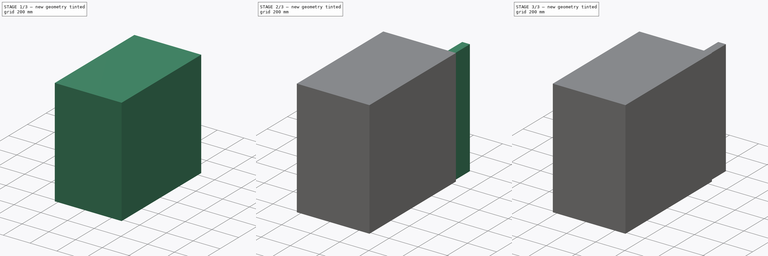
[diagram: build sequence overview — one tinted view per stage of 3, left to right]
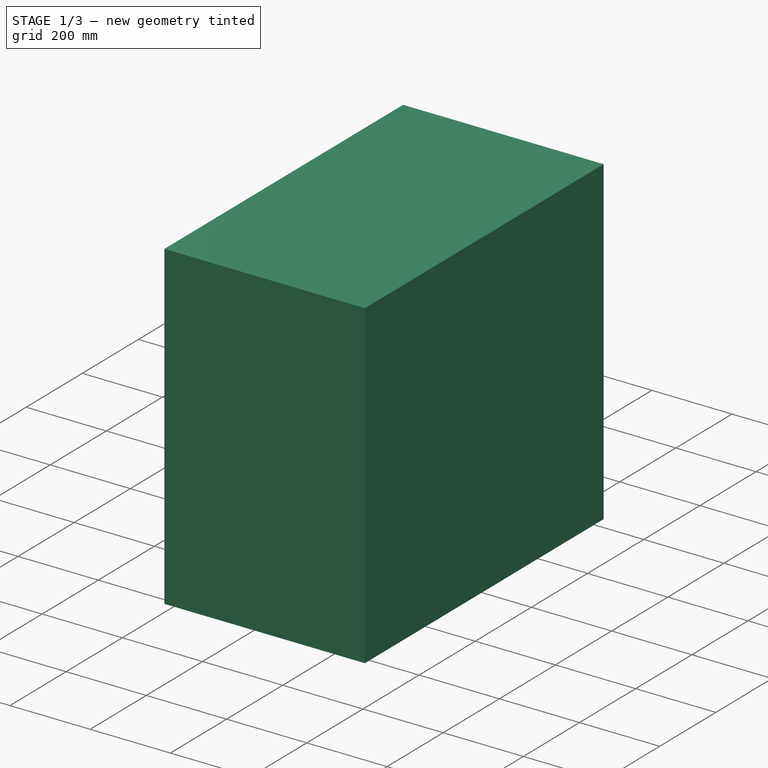
[diagram: stage 1 of 3 — iso view after this stage's code; geometry added in this stage tinted green]
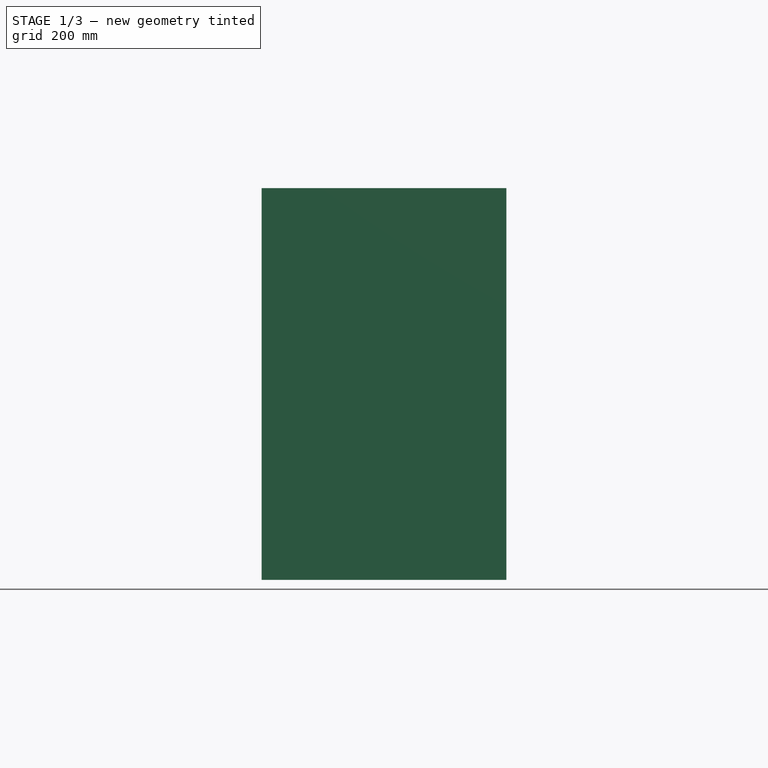
[diagram: stage 1 of 3 — front view after this stage's code; geometry added in this stage tinted green]
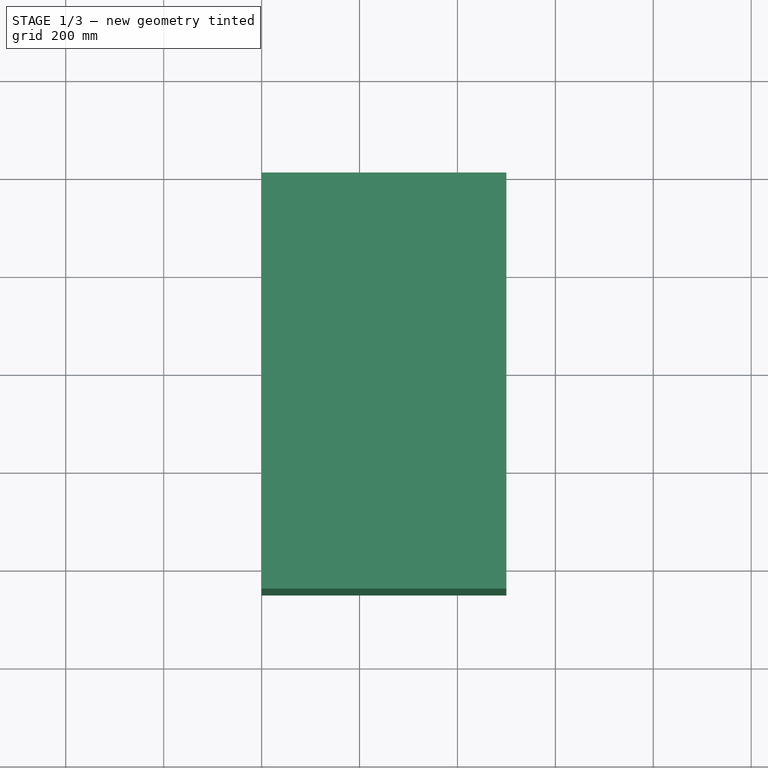
[diagram: stage 1 of 3 — top view after this stage's code; geometry added in this stage tinted green]
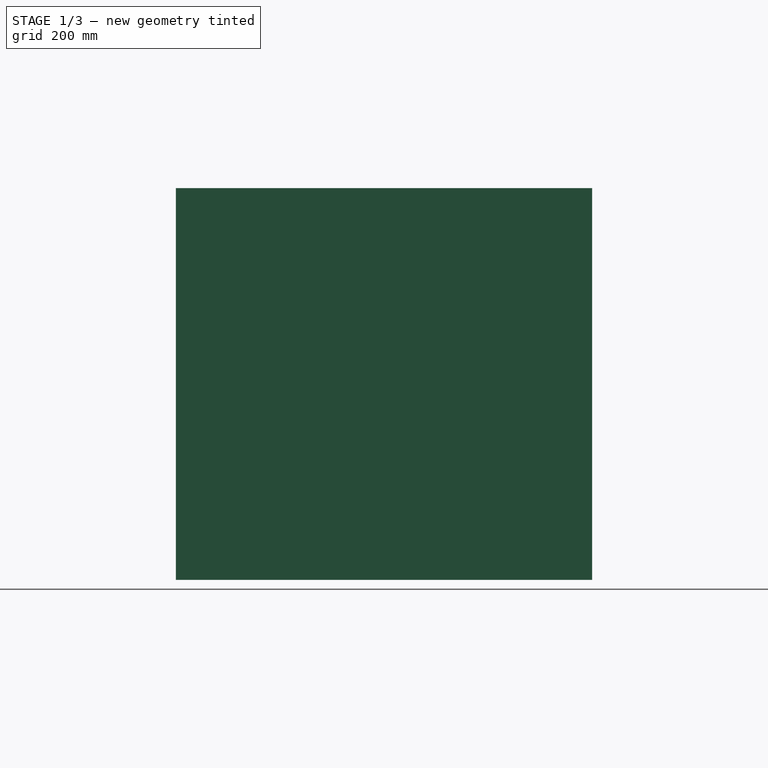
[diagram: stage 1 of 3 — right view after this stage's code; geometry added in this stage tinted green]
FCSTD DOCUMENT  (FreeCAD 1.0R39319 (Git))
Label: kitchen-stove-500x800x850
License: All rights reserved
LicenseURL: https://en.wikipedia.org/wiki/All_rights_reserved
objects: Sketcher::SketchObject×7, PartDesign::Pad×5, PartDesign::Pocket×2, PartDesign::Body×1
note: 36 computed .brp shape members not serialized (recipe doc carries the construction recipe); baked Part::Feature solids carry a one-line shape summary decoded from their .brp

FEATURE [Sketcher::SketchObject] Sketch
  ArcFitTolerance = 1e-06
  AttachmentSupport = -> [XZ_Plane]
  FullyConstrained = true
  MakeInternals = false
  MapMode = 5
  Placement = pos=(0,0,0) rot=(1,0,0;1.5708rad)
  sketch-geometry (4):
    g0: LineSegment StartX=0 StartY=0 StartZ=0 EndX=500 EndY=0 EndZ=0
    g1: LineSegment StartX=500 StartY=0 StartZ=0 EndX=500 EndY=800 EndZ=0
    g2: LineSegment StartX=500 StartY=800 StartZ=0 EndX=0 EndY=800 EndZ=0
    g3: LineSegment StartX=0 StartY=800 StartZ=0 EndX=0 EndY=0 EndZ=0
  constraints (11):
    c: Coincident(g0,g1)
    c: Coincident(g1,g2)
    c: Coincident(g2,g3)
    c: Coincident(g3,g0)
    c: Horizontal(g0)
    c: Horizontal(g2)
    c: Vertical(g1)
    c: Vertical(g3)
    c: Distance(g1,g3) = 500
    c: Distance(g0,g2) = 800
    c: Coincident(g0,g-1)
FEATURE [PartDesign::Pad] Pad
  Direction = (0,-1,2e-16)
  Length = 850
  Length2 = 10
  Placement = pos=(0,0,0) rot=(1,0,0;1.5708rad)
  Profile = -> Sketch
  ReferenceAxis = -> Sketch [N_Axis]
  Refine = true
  Suppressed = false
  Type = 0
FEATURE [Sketcher::SketchObject] Sketch001
  ArcFitTolerance = 1e-06
  AttachmentSupport = -> [Pad]
  FullyConstrained = false
  MakeInternals = false
  MapMode = 5
  Placement = pos=(0,0,0) rot=(0.707107,0,-0.707107;3.14159rad)
  sketch-geometry (8):
    g0: LineSegment StartX=-773.792 StartY=818.797 StartZ=0 EndX=-773.792 EndY=33.306 EndZ=0
    g1: LineSegment StartX=-773.792 StartY=33.306 StartZ=0 EndX=-401.052 EndY=33.306 EndZ=0
    g2: LineSegment StartX=-401.052 StartY=33.306 StartZ=0 EndX=-401.052 EndY=818.797 EndZ=0
    g3: LineSegment StartX=-401.052 StartY=818.797 StartZ=0 EndX=-773.792 EndY=818.797 EndZ=0
    g4: LineSegment StartX=-379.994 StartY=818.797 StartZ=0 EndX=-379.994 EndY=33.306 EndZ=0
    g5: LineSegment StartX=-379.994 StartY=33.306 StartZ=0 EndX=-30.4183 EndY=33.306 EndZ=0
    g6: LineSegment StartX=-30.4183 StartY=33.306 StartZ=0 EndX=-30.4183 EndY=818.797 EndZ=0
    g7: LineSegment StartX=-30.4183 StartY=818.797 StartZ=0 EndX=-379.994 EndY=818.797 EndZ=0
  constraints (16):
    c: Coincident(g0,g1)
    c: Coincident(g1,g2)
    c: Coincident(g2,g3)
    c: Coincident(g3,g0)
    c: Vertical(g0)
    c: Vertical(g2)
    c: Horizontal(g1)
    c: Horizontal(g3)
    c: Coincident(g4,g5)
    c: Coincident(g5,g6)
    c: Coincident(g6,g7)
    c: Coincident(g7,g4)
    c: Vertical(g4)
    c: Vertical(g6)
    c: Horizontal(g5)
    c: Horizontal(g7)
FEATURE [PartDesign::Pocket] Pocket
  BaseFeature = -> Pad
  Direction = (1,0,2e-16)
  Length = 5
  Length2 = 5
  Placement = pos=(0,0,0) rot=(1,0,0;1.5708rad)
  Profile = -> Sketch001
  ReferenceAxis = -> Sketch001 [N_Axis]
  Refine = true
  Suppressed = false
  Type = 0
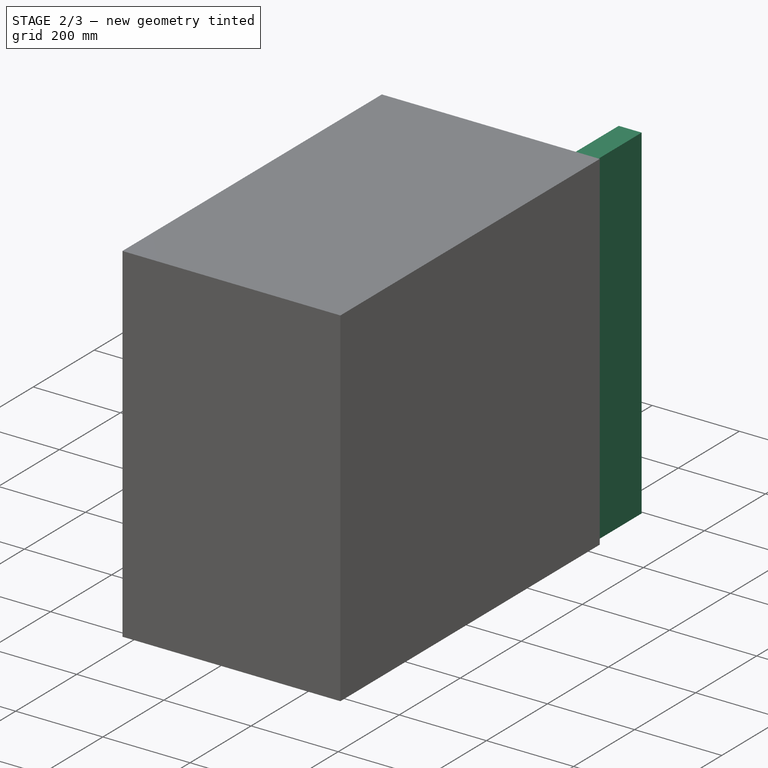
[diagram: stage 2 of 3 — iso view after this stage's code; geometry added in this stage tinted green]
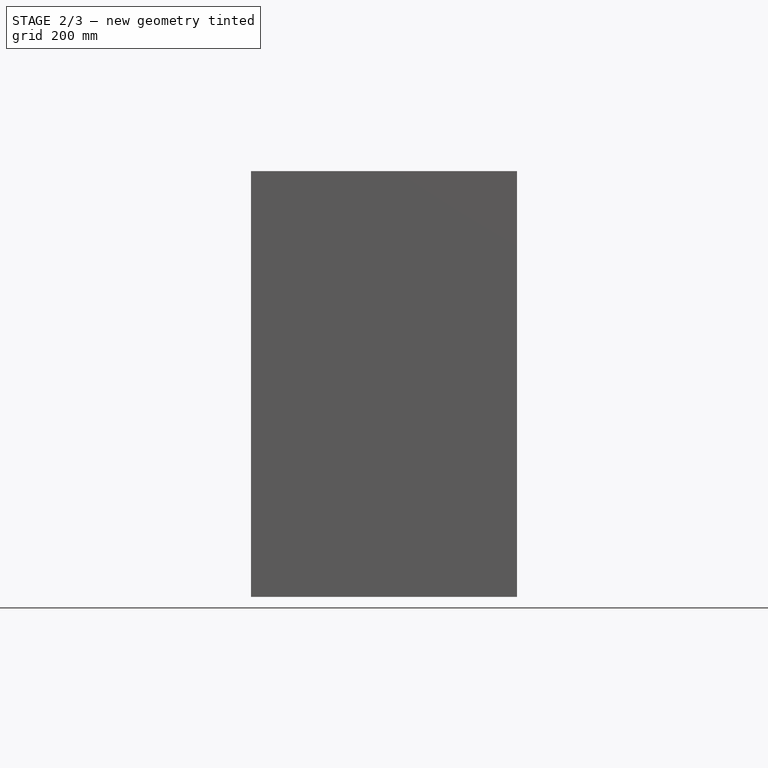
[diagram: stage 2 of 3 — front view after this stage's code; geometry added in this stage tinted green]
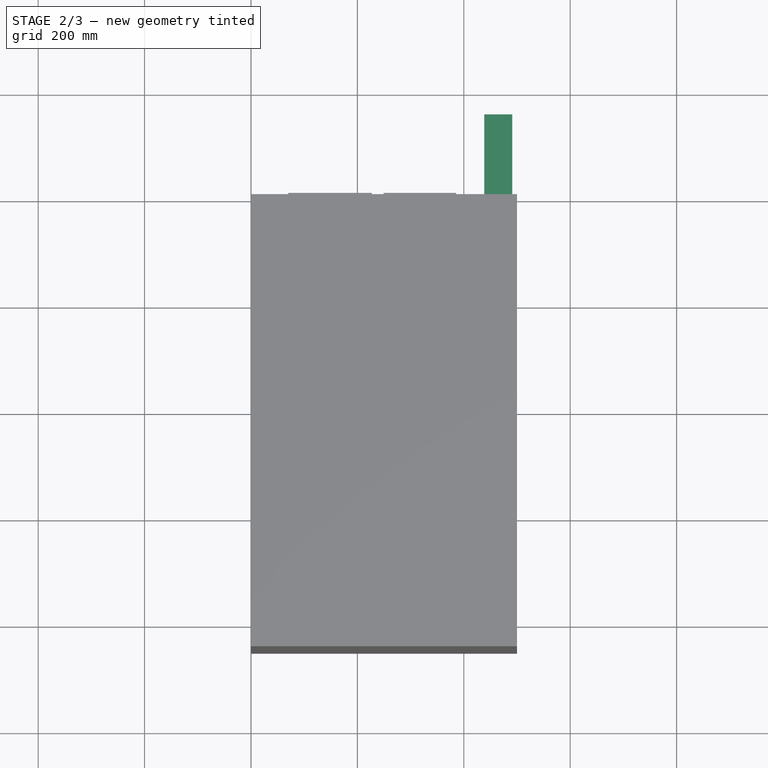
[diagram: stage 2 of 3 — top view after this stage's code; geometry added in this stage tinted green]
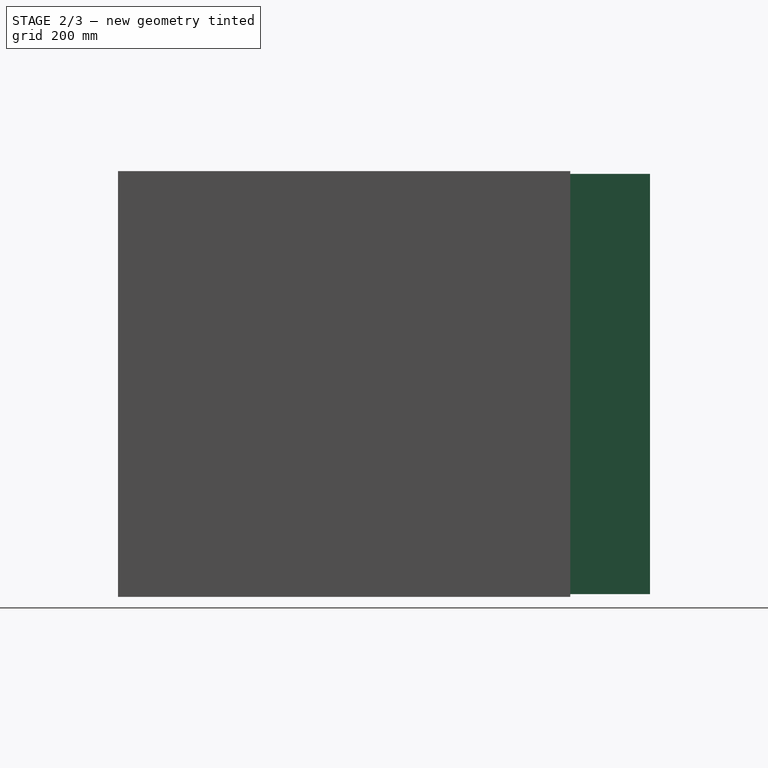
[diagram: stage 2 of 3 — right view after this stage's code; geometry added in this stage tinted green]
FEATURE [Sketcher::SketchObject] Sketch002
  ArcFitTolerance = 1e-06
  AttachmentSupport = -> [Pocket]
  FullyConstrained = false
  MakeInternals = false
  MapMode = 5
  Placement = pos=(0,8.88e-14,0) rot=(-1,0,0;1.5708rad)
  sketch-geometry (4):
    g0: LineSegment StartX=491.123 StartY=-5.15111 StartZ=0 EndX=438.476 EndY=-5.15111 EndZ=0
    g1: LineSegment StartX=438.476 StartY=-5.15111 StartZ=0 EndX=438.476 EndY=-794.854 EndZ=0
    g2: LineSegment StartX=438.476 StartY=-794.854 StartZ=0 EndX=491.123 EndY=-794.854 EndZ=0
    g3: LineSegment StartX=491.123 StartY=-794.854 StartZ=0 EndX=491.123 EndY=-5.15111 EndZ=0
  constraints (8):
    c: Coincident(g0,g1)
    c: Coincident(g1,g2)
    c: Coincident(g2,g3)
    c: Coincident(g3,g0)
    c: Horizontal(g0)
    c: Horizontal(g2)
    c: Vertical(g1)
    c: Vertical(g3)
FEATURE [PartDesign::Pad] Pad001
  BaseFeature = -> Pocket
  Direction = (0,1,2e-16)
  Length = 150
  Length2 = 10
  Placement = pos=(0,0,0) rot=(1,0,0;1.5708rad)
  Profile = -> Sketch002
  ReferenceAxis = -> Sketch002 [N_Axis]
  Refine = true
  Suppressed = false
  Type = 0
FEATURE [Sketcher::SketchObject] Sketch003
  ArcFitTolerance = 1e-06
  AttachmentSupport = -> [Pad001]
  FullyConstrained = false
  MakeInternals = false
  MapMode = 5
  Placement = pos=(0,8.88e-14,0) rot=(-1,0,0;1.5708rad)
  sketch-geometry (4):
    g0: LineSegment StartX=49.5408 StartY=-60.6367 StartZ=0 EndX=49.5408 EndY=-727.948 EndZ=0
    g1: LineSegment StartX=49.5408 StartY=-727.948 StartZ=0 EndX=407.253 EndY=-727.948 EndZ=0
    g2: LineSegment StartX=407.253 StartY=-727.948 StartZ=0 EndX=407.253 EndY=-60.6367 EndZ=0
    g3: LineSegment StartX=407.253 StartY=-60.6367 StartZ=0 EndX=49.5408 EndY=-60.6367 EndZ=0
  constraints (8):
    c: Coincident(g0,g1)
    c: Coincident(g1,g2)
    c: Coincident(g2,g3)
    c: Coincident(g3,g0)
    c: Vertical(g0)
    c: Vertical(g2)
    c: Horizontal(g1)
    c: Horizontal(g3)
FEATURE [PartDesign::Pocket] Pocket001
  BaseFeature = -> Pad001
  Direction = (0,-1,-2e-16)
  Length = 5
  Length2 = 5
  Placement = pos=(0,0,0) rot=(1,0,0;1.5708rad)
  Profile = -> Sketch003
  ReferenceAxis = -> Sketch003 [N_Axis]
  Refine = true
  Suppressed = false
  Type = 0
FEATURE [Sketcher::SketchObject] Sketch004
  ArcFitTolerance = 1e-06
  AttachmentSupport = -> [Pocket001]
  FullyConstrained = false
  MakeInternals = false
  MapMode = 5
  Placement = pos=(0,-5,0) rot=(-1,0,0;1.5708rad)
  sketch-geometry (16):
    g0: LineSegment StartX=73.155 StartY=-128.365 StartZ=0 EndX=73.155 EndY=-363.893 EndZ=0
    g1: LineSegment StartX=73.155 StartY=-363.893 StartZ=0 EndX=225.367 EndY=-363.893 EndZ=0
    g2: LineSegment StartX=225.367 StartY=-363.893 StartZ=0 EndX=225.367 EndY=-128.365 EndZ=0
    g3: LineSegment StartX=225.367 StartY=-128.365 StartZ=0 EndX=73.155 EndY=-128.365 EndZ=0
    g4: LineSegment StartX=251.003 StartY=-131.569 StartZ=0 EndX=251.003 EndY=-365.495 EndZ=0
    g5: LineSegment StartX=251.003 StartY=-365.495 StartZ=0 EndX=387.193 EndY=-365.495 EndZ=0
    g6: LineSegment StartX=387.193 StartY=-365.495 StartZ=0 EndX=387.193 EndY=-131.569 EndZ=0
    g7: LineSegment StartX=387.193 StartY=-131.569 StartZ=0 EndX=251.003 EndY=-131.569 EndZ=0
    g8: LineSegment StartX=69.9506 StartY=-649.09 StartZ=0 EndX=226.969 EndY=-649.09 EndZ=0
    g9: LineSegment StartX=226.969 StartY=-649.09 StartZ=0 EndX=226.969 EndY=-415.164 EndZ=0
    g10: LineSegment StartX=226.969 StartY=-415.164 StartZ=0 EndX=69.9506 EndY=-415.164 EndZ=0
    g11: LineSegment StartX=69.9506 StartY=-415.164 StartZ=0 EndX=69.9506 EndY=-649.09 EndZ=0
    g12: LineSegment StartX=249.401 StartY=-650.693 StartZ=0 EndX=385.591 EndY=-650.693 EndZ=0
    g13: LineSegment StartX=385.591 StartY=-650.693 StartZ=0 EndX=385.591 EndY=-411.96 EndZ=0
    g14: LineSegment StartX=385.591 StartY=-411.96 StartZ=0 EndX=249.401 EndY=-411.96 EndZ=0
    g15: LineSegment StartX=249.401 StartY=-411.96 StartZ=0 EndX=249.401 EndY=-650.693 EndZ=0
  constraints (32):
    c: Coincident(g0,g1)
    c: Coincident(g1,g2)
    c: Coincident(g2,g3)
    c: Coincident(g3,g0)
    c: Vertical(g0)
    c: Vertical(g2)
    c: Horizontal(g1)
    c: Horizontal(g3)
    c: Coincident(g4,g5)
    c: Coincident(g5,g6)
    c: Coincident(g6,g7)
    c: Coincident(g7,g4)
    c: Vertical(g4)
    c: Vertical(g6)
    c: Horizontal(g5)
    c: Horizontal(g7)
    c: Coincident(g8,g9)
    c: Coincident(g9,g10)
    c: Coincident(g10,g11)
    c: Coincident(g11,g8)
    c: Horizontal(g8)
    c: Horizontal(g10)
    c: Vertical(g9)
    c: Vertical(g11)
    c: Coincident(g12,g13)
    c: Coincident(g13,g14)
    c: Coincident(g14,g15)
    c: Coincident(g15,g12)
    c: Horizontal(g12)
    c: Horizontal(g14)
    c: Vertical(g13)
    c: Vertical(g15)
FEATURE [PartDesign::Pad] Pad002
  BaseFeature = -> Pocket001
  Direction = (0,1,2e-16)
  Length = 10
  Length2 = 10
  Placement = pos=(0,0,0) rot=(1,0,0;1.5708rad)
  Profile = -> Sketch004
  ReferenceAxis = -> Sketch004 [N_Axis]
  Refine = true
  Suppressed = false
  Type = 0
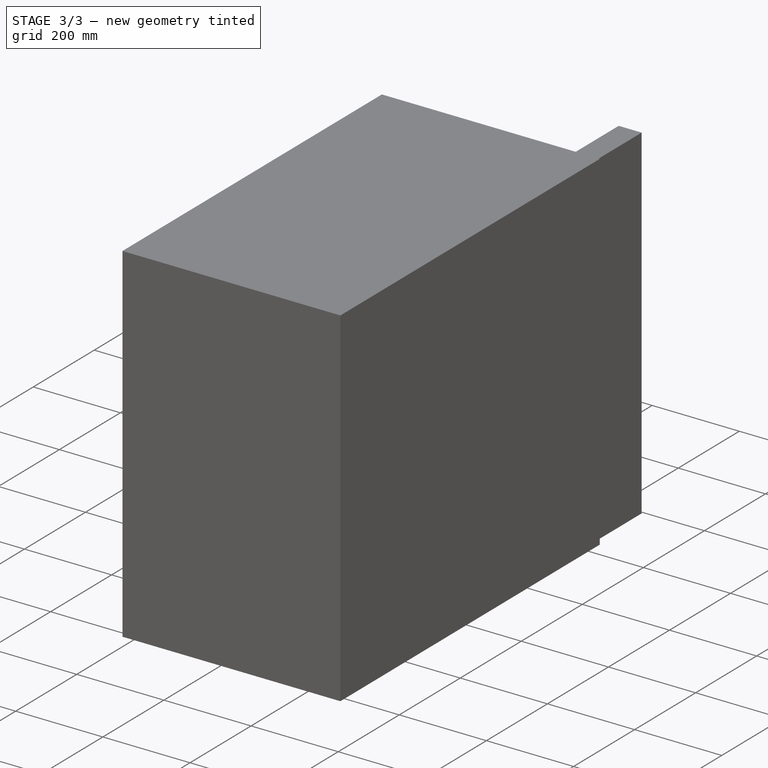
[diagram: stage 3 of 3 — iso view after this stage's code; geometry added in this stage tinted green]
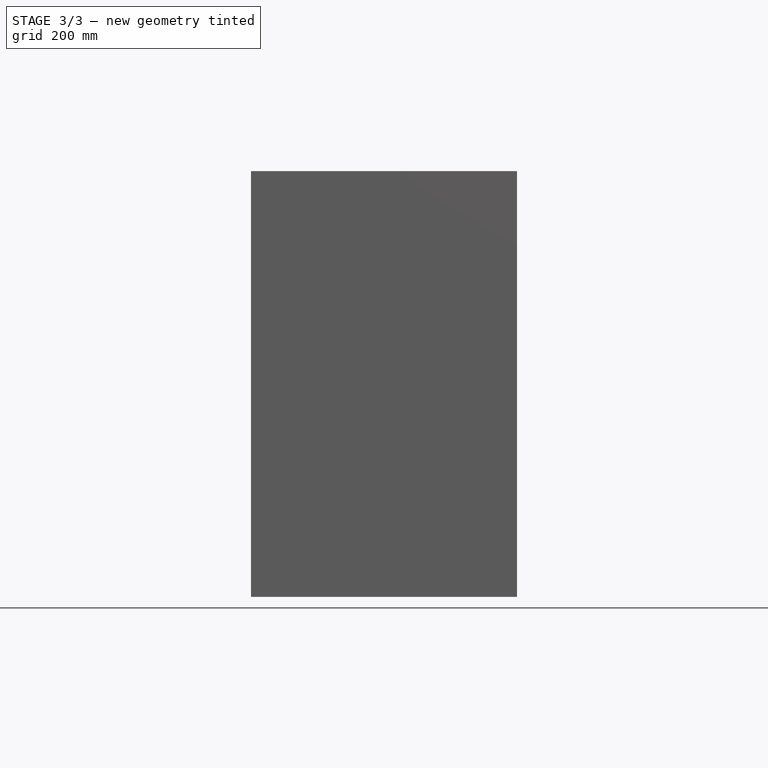
[diagram: stage 3 of 3 — front view after this stage's code; geometry added in this stage tinted green]
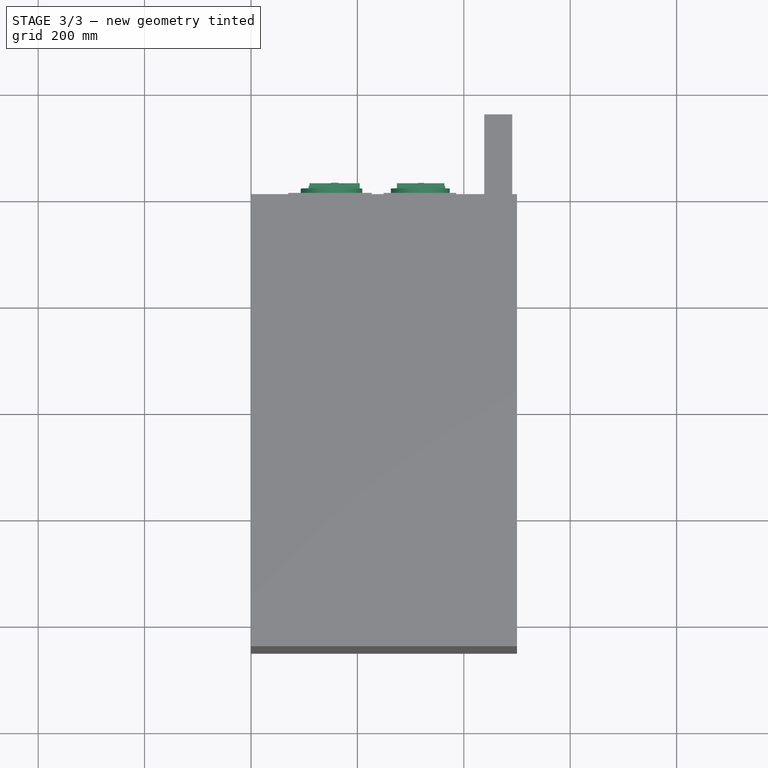
[diagram: stage 3 of 3 — top view after this stage's code; geometry added in this stage tinted green]
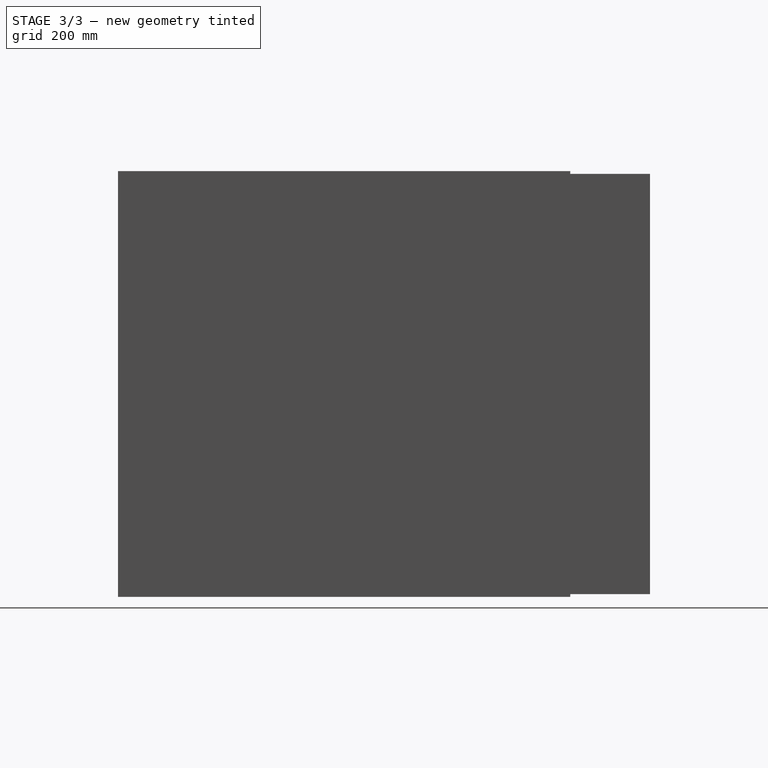
[diagram: stage 3 of 3 — right view after this stage's code; geometry added in this stage tinted green]
FEATURE [Sketcher::SketchObject] Sketch005
  ArcFitTolerance = 1e-06
  AttachmentSupport = -> [Pad002]
  FullyConstrained = false
  MakeInternals = false
  MapMode = 5
  Placement = pos=(0,5,1.1e-15) rot=(-1,0,0;1.5708rad)
  sketch-geometry (4):
    g0: Circle CenterX=152.459 CenterY=-245.139 CenterZ=0 NormalX=0 NormalY=0 NormalZ=1 AngleXU=0 Radius=54.9825
    g1: Circle CenterX=320.337 CenterY=-246.188 CenterZ=0 NormalX=0 NormalY=0 NormalZ=1 AngleXU=0 Radius=53.1913
    g2: Circle CenterX=151.41 CenterY=-531.581 CenterZ=0 NormalX=0 NormalY=0 NormalZ=1 AngleXU=0 Radius=57.8225
    g3: Circle CenterX=318.239 CenterY=-533.679 CenterZ=0 NormalX=0 NormalY=0 NormalZ=1 AngleXU=0 Radius=55.4113
FEATURE [PartDesign::Pad] Pad003
  BaseFeature = -> Pad002
  Direction = (0,1,2e-16)
  Length = 10
  Length2 = 10
  Placement = pos=(0,0,0) rot=(1,0,0;1.5708rad)
  Profile = -> Sketch005
  ReferenceAxis = -> Sketch005 [N_Axis]
  Refine = true
  Suppressed = false
  Type = 0
FEATURE [Sketcher::SketchObject] Sketch006
  ArcFitTolerance = 1e-06
  AttachmentSupport = -> [Pad003]
  FullyConstrained = false
  MakeInternals = false
  MapMode = 5
  Placement = pos=(0,15,0) rot=(-1,0,0;1.5708rad)
  sketch-geometry (32):
    g0: LineSegment StartX=108.304 StartY=-241.928 StartZ=0 EndX=108.304 EndY=-252.411 EndZ=0
    g1: LineSegment StartX=108.304 StartY=-252.411 StartZ=0 EndX=197.416 EndY=-252.411 EndZ=0
    g2: LineSegment StartX=197.416 StartY=-252.411 StartZ=0 EndX=197.416 EndY=-241.928 EndZ=0
    g3: LineSegment StartX=197.416 StartY=-241.928 StartZ=0 EndX=108.304 EndY=-241.928 EndZ=0
    g4: LineSegment StartX=277.791 StartY=-243.675 StartZ=0 EndX=277.791 EndY=-255.906 EndZ=0
    g5: LineSegment StartX=277.791 StartY=-255.906 StartZ=0 EndX=365.156 EndY=-255.906 EndZ=0
    g6: LineSegment StartX=365.156 StartY=-255.906 StartZ=0 EndX=365.156 EndY=-243.675 EndZ=0
    g7: LineSegment StartX=365.156 StartY=-243.675 StartZ=0 EndX=277.791 EndY=-243.675 EndZ=0
    g8: LineSegment StartX=110.052 StartY=-524.988 StartZ=0 EndX=110.052 EndY=-538.967 EndZ=0
    g9: LineSegment StartX=110.052 StartY=-538.967 StartZ=0 EndX=204.405 EndY=-538.967 EndZ=0
    g10: LineSegment StartX=204.405 StartY=-538.967 StartZ=0 EndX=204.405 EndY=-524.988 EndZ=0
    g11: LineSegment StartX=204.405 StartY=-524.988 StartZ=0 EndX=110.052 EndY=-524.988 EndZ=0
    g12: LineSegment StartX=274.297 StartY=-528.483 StartZ=0 EndX=274.297 EndY=-538.967 EndZ=0
    g13: LineSegment StartX=274.297 StartY=-538.967 StartZ=0 EndX=363.409 EndY=-538.967 EndZ=0
    g14: LineSegment StartX=363.409 StartY=-538.967 StartZ=0 EndX=363.409 EndY=-528.483 EndZ=0
    g15: LineSegment StartX=363.409 StartY=-528.483 StartZ=0 EndX=274.297 EndY=-528.483 EndZ=0
    g16: LineSegment StartX=151.987 StartY=-196.498 StartZ=0 EndX=151.987 EndY=-292.599 EndZ=0
    g17: LineSegment StartX=151.987 StartY=-292.599 StartZ=0 EndX=165.965 EndY=-292.599 EndZ=0
    g18: LineSegment StartX=165.965 StartY=-292.599 StartZ=0 EndX=165.965 EndY=-196.498 EndZ=0
    g19: LineSegment StartX=165.965 StartY=-196.498 StartZ=0 EndX=151.987 EndY=-196.498 EndZ=0
    g20: LineSegment StartX=316.232 StartY=-199.993 StartZ=0 EndX=316.232 EndY=-294.346 EndZ=0
    g21: LineSegment StartX=316.232 StartY=-294.346 StartZ=0 EndX=328.463 EndY=-294.346 EndZ=0
    g22: LineSegment StartX=328.463 StartY=-294.346 StartZ=0 EndX=328.463 EndY=-199.993 EndZ=0
    g23: LineSegment StartX=328.463 StartY=-199.993 StartZ=0 EndX=316.232 EndY=-199.993 EndZ=0
    g24: LineSegment StartX=150.239 StartY=-483.053 StartZ=0 EndX=150.239 EndY=-584.396 EndZ=0
    g25: LineSegment StartX=150.239 StartY=-584.396 StartZ=0 EndX=164.218 EndY=-584.396 EndZ=0
    g26: LineSegment StartX=164.218 StartY=-584.396 StartZ=0 EndX=164.218 EndY=-483.053 EndZ=0
    g27: LineSegment StartX=164.218 StartY=-483.053 StartZ=0 EndX=150.239 EndY=-483.053 EndZ=0
    g28: LineSegment StartX=314.485 StartY=-491.79 StartZ=0 EndX=314.485 EndY=-580.902 EndZ=0
    g29: LineSegment StartX=314.485 StartY=-580.902 StartZ=0 EndX=324.968 EndY=-580.902 EndZ=0
    g30: LineSegment StartX=324.968 StartY=-580.902 StartZ=0 EndX=324.968 EndY=-491.79 EndZ=0
    g31: LineSegment StartX=324.968 StartY=-491.79 StartZ=0 EndX=314.485 EndY=-491.79 EndZ=0
  constraints (64):
    c: Coincident(g0,g1)
    c: Coincident(g1,g2)
    c: Coincident(g2,g3)
    c: Coincident(g3,g0)
    c: Vertical(g0)
    c: Vertical(g2)
    c: Horizontal(g1)
    c: Horizontal(g3)
    c: Coincident(g4,g5)
    c: Coincident(g5,g6)
    c: Coincident(g6,g7)
    c: Coincident(g7,g4)
    c: Vertical(g4)
    c: Vertical(g6)
    c: Horizontal(g5)
    c: Horizontal(g7)
    c: Coincident(g8,g9)
    c: Coincident(g9,g10)
    c: Coincident(g10,g11)
    c: Coincident(g11,g8)
    c: Vertical(g8)
    c: Vertical(g10)
    c: Horizontal(g9)
    c: Horizontal(g11)
    c: Coincident(g12,g13)
    c: Coincident(g13,g14)
    c: Coincident(g14,g15)
    c: Coincident(g15,g12)
    c: Vertical(g12)
    c: Vertical(g14)
    c: Horizontal(g13)
    c: Horizontal(g15)
    c: Coincident(g16,g17)
    c: Coincident(g17,g18)
    c: Coincident(g18,g19)
    c: Coincident(g19,g16)
    c: Vertical(g16)
    c: Vertical(g18)
    c: Horizontal(g17)
    c: Horizontal(g19)
    c: Coincident(g20,g21)
    c: Coincident(g21,g22)
    c: Coincident(g22,g23)
    c: Coincident(g23,g20)
    c: Vertical(g20)
    c: Vertical(g22)
    c: Horizontal(g21)
    c: Horizontal(g23)
    c: Coincident(g24,g25)
    c: Coincident(g25,g26)
    c: Coincident(g26,g27)
    c: Coincident(g27,g24)
    c: Vertical(g24)
    c: Vertical(g26)
    c: Horizontal(g25)
    c: Horizontal(g27)
    c: Coincident(g28,g29)
    c: Coincident(g29,g30)
    c: Coincident(g30,g31)
    c: Coincident(g31,g28)
    c: Vertical(g28)
    c: Vertical(g30)
    c: Horizontal(g29)
    c: Horizontal(g31)
FEATURE [PartDesign::Pad] Pad004
  BaseFeature = -> Pad003
  Direction = (0,1,2e-16)
  Length = 10
  Length2 = 10
  Placement = pos=(0,0,0) rot=(1,0,0;1.5708rad)
  Profile = -> Sketch006
  ReferenceAxis = -> Sketch006 [N_Axis]
  Refine = true
  Suppressed = false
  Type = 0
FEATURE [PartDesign::Body] Body
  AllowCompound = false
  Group = -> [Sketch,Pad,Sketch001,Pocket,Sketch002,Pad001,Sketch003,Pocket001,Sketch004,Pad002,Sketch005,Pad003,Sketch006,Pad004]
  Origin = -> Origin
  Tip = -> Pad004
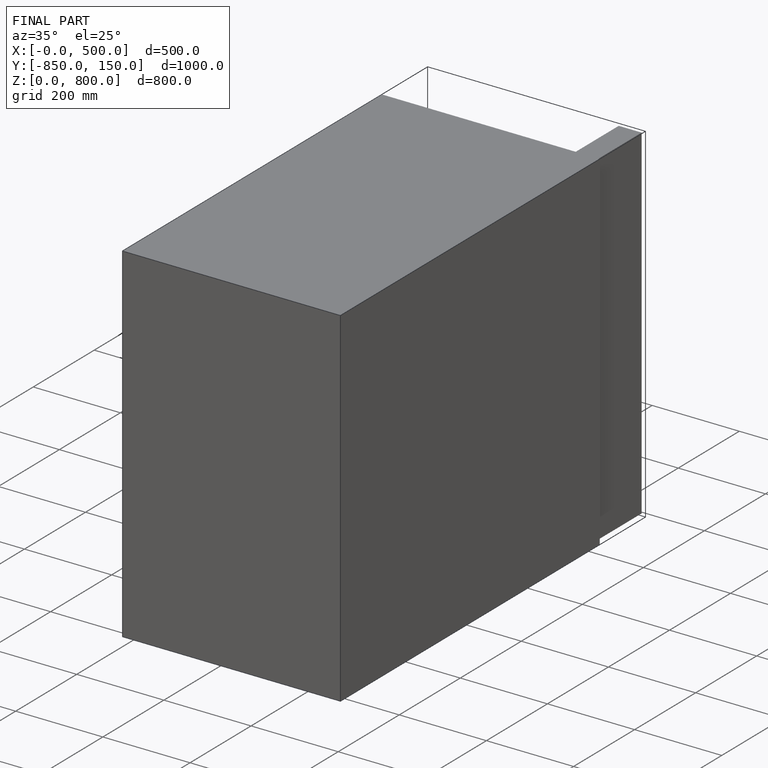
[diagram: finished part — iso view with bounding-box wireframe]
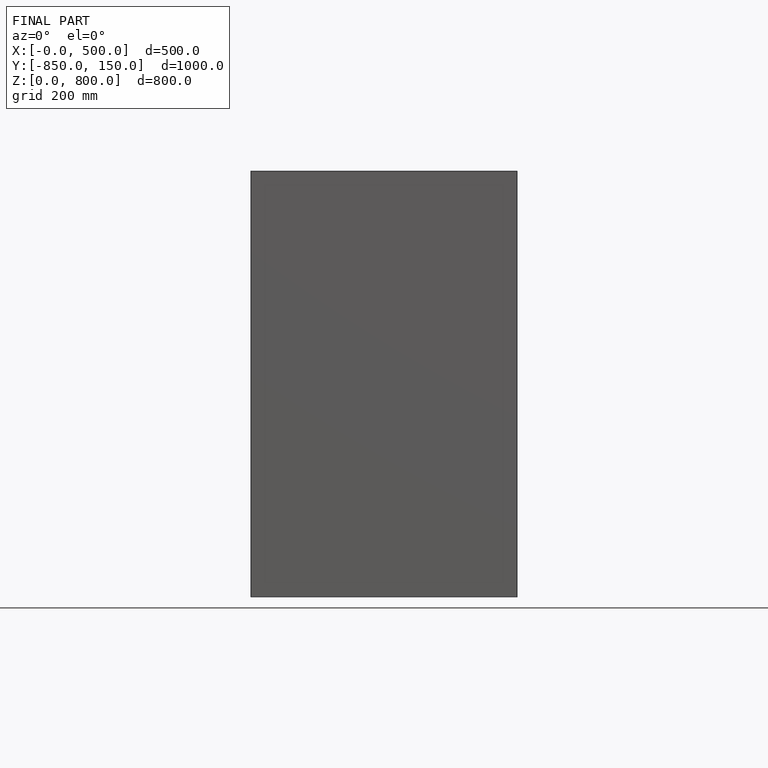
[diagram: finished part — front view with bounding-box wireframe]
